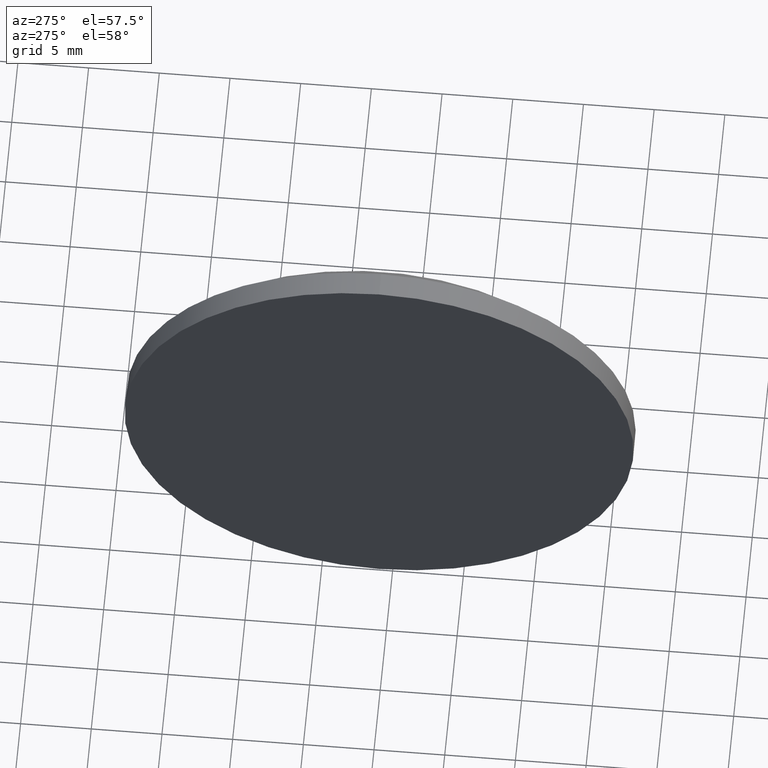
[diagram: clean part render]
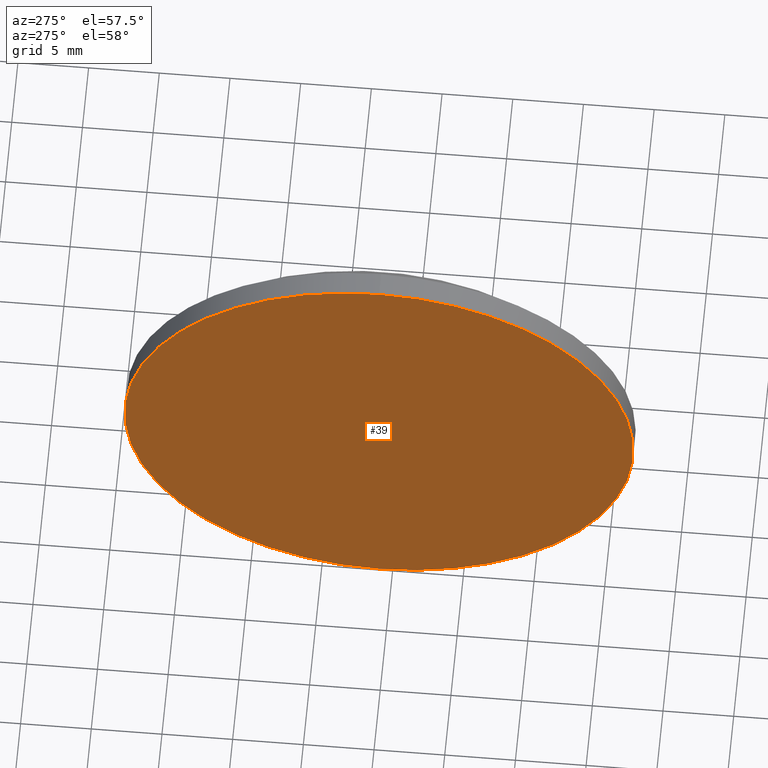
[diagram: same view with one face highlighted and labeled with its STEP entity id]
A machine part, auxiliary view. The second image highlights one B-rep face of the part: STEP entity #39.
In plain terms, the highlighted planar face has unit normal (1, 0, 0).
Its self-contained STEP definition (entity closure, byte-faithful):
#7 = EDGE_LOOP ( 'NONE', ( #65, #40 ) ) ;
#8 = CARTESIAN_POINT ( 'NONE',  ( 379.5886439777123100, 55.92268159127587500, 18.00000000000000400 ) ) ;
#13 = VERTEX_POINT ( 'NONE', #176 ) ;
#17 = AXIS2_PLACEMENT_3D ( 'NONE', #152, #130, #166 ) ;
#19 = CARTESIAN_POINT ( 'NONE',  ( 379.5886439777123100, 55.92268159127587500, 0.0000000000000000000 ) ) ;
#39 = ADVANCED_FACE ( 'NONE', ( #172 ), #125, .F. ) ;
#40 = ORIENTED_EDGE ( 'NONE', *, *, #82, .T. ) ;
#61 = AXIS2_PLACEMENT_3D ( 'NONE', #19, #171, #141 ) ;
#65 = ORIENTED_EDGE ( 'NONE', *, *, #94, .T. ) ;
#76 = CIRCLE ( 'NONE', #61, 18.00000000000000400 ) ;
#77 = AXIS2_PLACEMENT_3D ( 'NONE', #115, #85, #129 ) ;
#82 = EDGE_CURVE ( 'NONE', #13, #161, #103, .T. ) ;
#85 = DIRECTION ( 'NONE',  ( -1.000000000000000000, -0.0000000000000000000, -0.0000000000000000000 ) ) ;
#94 = EDGE_CURVE ( 'NONE', #161, #13, #76, .T. ) ;
#103 = CIRCLE ( 'NONE', #77, 18.00000000000000400 ) ;
#115 = CARTESIAN_POINT ( 'NONE',  ( 379.5886439777123100, 55.92268159127587500, 0.0000000000000000000 ) ) ;
#125 = PLANE ( 'NONE',  #17 ) ;
#129 = DIRECTION ( 'NONE',  ( 0.0000000000000000000, 0.0000000000000000000, 1.000000000000000000 ) ) ;
#130 = DIRECTION ( 'NONE',  ( 1.000000000000000000, 0.0000000000000000000, 0.0000000000000000000 ) ) ;
#141 = DIRECTION ( 'NONE',  ( 0.0000000000000000000, 0.0000000000000000000, 1.000000000000000000 ) ) ;
#152 = CARTESIAN_POINT ( 'NONE',  ( 379.5886439777123100, 55.92268159127587500, 0.0000000000000000000 ) ) ;
#161 = VERTEX_POINT ( 'NONE', #8 ) ;
#166 = DIRECTION ( 'NONE',  ( 0.0000000000000000000, 0.0000000000000000000, -1.000000000000000000 ) ) ;
#171 = DIRECTION ( 'NONE',  ( -1.000000000000000000, -0.0000000000000000000, -0.0000000000000000000 ) ) ;
#172 = FACE_OUTER_BOUND ( 'NONE', #7, .T. ) ;
#176 = CARTESIAN_POINT ( 'NONE',  ( 379.5886439777123100, 55.92268159127587500, -18.00000000000000400 ) ) ;